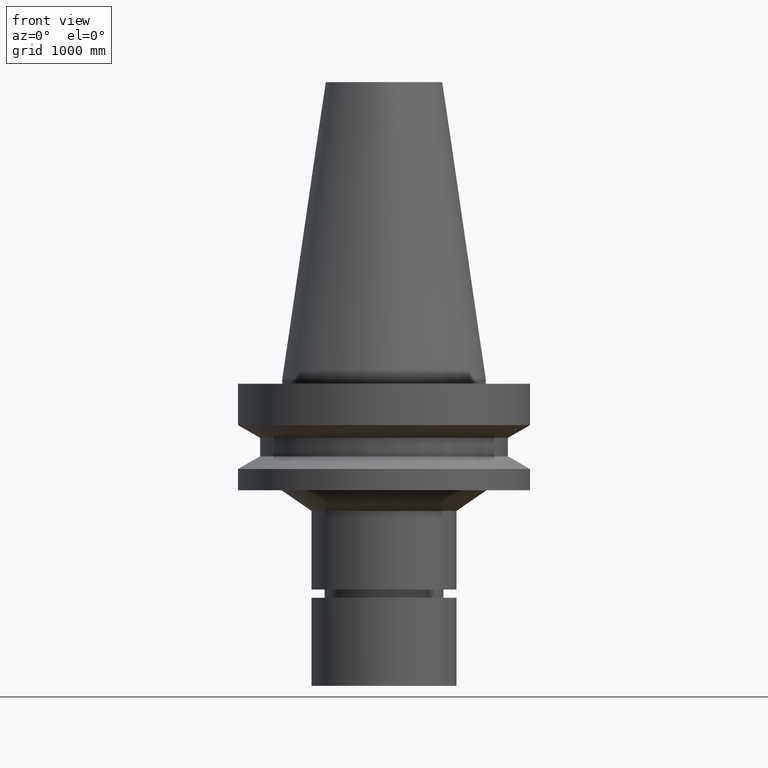
[diagram: clean part render]
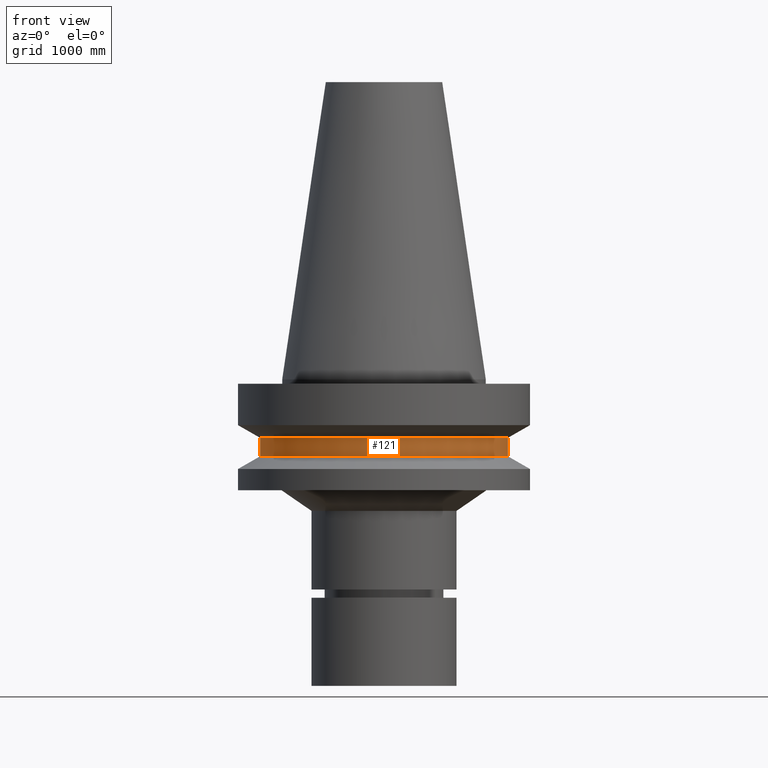
[diagram: same view with one face highlighted and labeled with its STEP entity id]
A machine part, front view. The second image highlights one B-rep face of the part: STEP entity #121.
In plain terms, the highlighted cylindrical surface (bore or boss wall) has radius 1079.5 mm, axis along (-0, 0, 1).
Its self-contained STEP definition (entity closure, byte-faithful):
#112=EDGE_CURVE('Unnamed[1]',#259,#259,#260,.T.);
#121=ADVANCED_FACE('Unnamed[1]',(#273,#274),#275,.T.);
#123=EDGE_CURVE('Unnamed[1]',#277,#277,#278,.T.);
#259=VERTEX_POINT('',#450);
#260=CIRCLE('',#451,42.5);
#273=FACE_BOUND('',#467,.T.);
#274=FACE_BOUND('',#468,.T.);
#275=CYLINDRICAL_SURFACE('',#469,42.5);
#277=VERTEX_POINT('',#472);
#278=CIRCLE('',#473,42.5);
#450=CARTESIAN_POINT('',(1.2264915470779E-015,42.5,-20.03012702));
#451=AXIS2_PLACEMENT_3D('',#645,#646,#647);
#467=EDGE_LOOP('',(#661));
#468=EDGE_LOOP('',(#662));
#469=AXIS2_PLACEMENT_3D('',#663,#664,#665);
#472=CARTESIAN_POINT('',(1.61468902694397E-015,42.5,-26.3698729800001));
#473=AXIS2_PLACEMENT_3D('',#666,#667,#668);
#645=CARTESIAN_POINT('',(1.2264915470779E-015,1.29933506625849E-014,-20.03012702));
#646=DIRECTION('',(-6.12323399573677E-017,1.40684069970318E-019,1.0));
#647=DIRECTION('',(-4.81853831596719E-033,1.0,-1.40684069970318E-019));
#661=ORIENTED_EDGE('',*,*,#112,.F.);
#662=ORIENTED_EDGE('',*,*,#123,.T.);
#663=CARTESIAN_POINT('',(1.42059028701093E-015,1.29929047119529E-014,-23.2));
#664=DIRECTION('',(-6.12323399573677E-017,1.40684069970318E-019,1.0));
#665=DIRECTION('',(-4.81853831596719E-033,1.0,-1.40684069970318E-019));
#666=CARTESIAN_POINT('',(1.61468902694397E-015,1.29924587613209E-014,-26.3698729800001));
#667=DIRECTION('',(-6.12323399573677E-017,1.40684069970318E-019,1.0));
#668=DIRECTION('',(-4.81853831596719E-033,1.0,-1.40684069970318E-019));